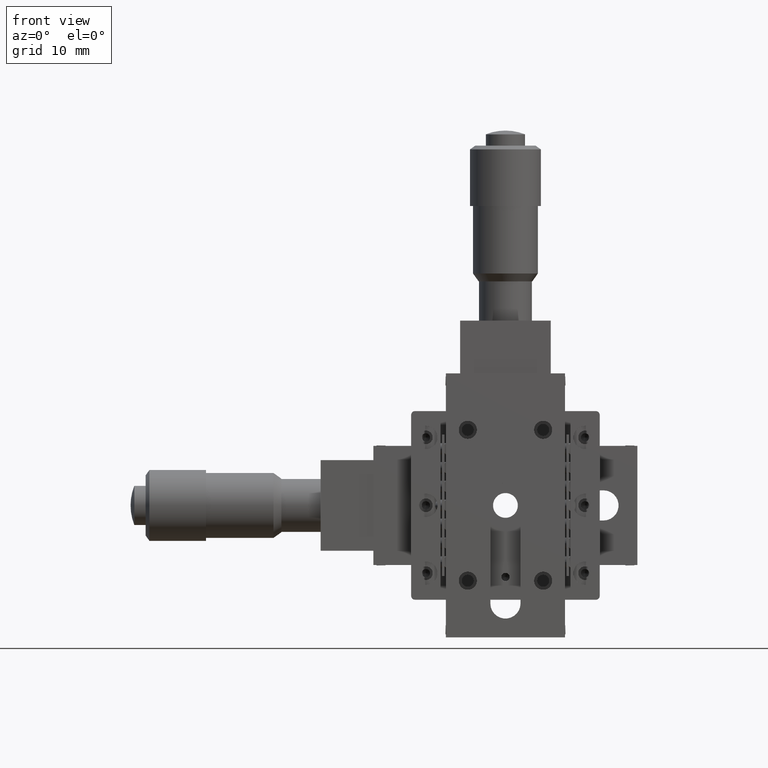
[diagram: clean part render]
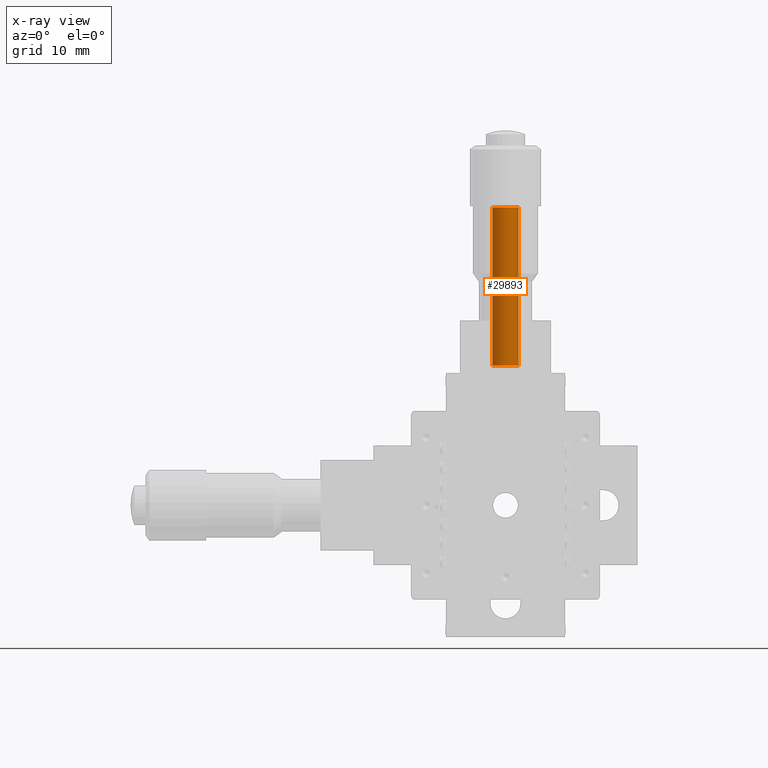
[diagram: x-ray — body ghosted, one internal face saturated and labeled with its STEP entity id]
A machine part, front view, then the same camera in x-ray: the body is ghosted and one INTERNAL B-rep face — a face not visible from any outside direction — is saturated and labeled: STEP entity #29893.
In plain terms, the highlighted cylindrical surface (edge-blend (fillet) strip) has radius 1.75 mm, axis along (-0, -0, -1).
Its self-contained STEP definition (entity closure, byte-faithful):
#2097 = CARTESIAN_POINT ( 'NONE',  ( 4.637034373615673300E-015, 6.199999999999921100, 39.50000000000000700 ) ) ;
#3196 = DIRECTION ( 'NONE',  ( -0.9995725314435850400, 0.02923618277858829100, 0.0000000000000000000 ) ) ;
#10994 = VERTEX_POINT ( 'NONE', #48759 ) ;
#12244 = VECTOR ( 'NONE', #35335, 1000.000000000000000 ) ;
#12376 = DIRECTION ( 'NONE',  ( -1.110223024626044000E-016, -1.762506864451433600E-016, -1.000000000000000000 ) ) ;
#16079 = DIRECTION ( 'NONE',  ( -1.110223024626044000E-016, -1.762506864451433600E-016, -1.000000000000000000 ) ) ;
#16398 = VERTEX_POINT ( 'NONE', #51252 ) ;
#21840 = AXIS2_PLACEMENT_3D ( 'NONE', #2097, #12376, #66994 ) ;
#22260 = AXIS2_PLACEMENT_3D ( 'NONE', #30285, #51921, #3196 ) ;
#23067 = AXIS2_PLACEMENT_3D ( 'NONE', #49136, #44119, #55257 ) ;
#24887 = FACE_OUTER_BOUND ( 'NONE', #32367, .T. ) ;
#29893 = ADVANCED_FACE ( 'NONE', ( #24887 ), #35138, .F. ) ;
#30079 = LINE ( 'NONE', #68335, #12244 ) ;
#30285 = CARTESIAN_POINT ( 'NONE',  ( 2.276824562219559300E-015, 6.199999999999905100, 18.50000000000000400 ) ) ;
#31492 = CIRCLE ( 'NONE', #23067, 1.750000000000002900 ) ;
#32367 = EDGE_LOOP ( 'NONE', ( #61842, #36831, #66581, #63854 ) ) ;
#35138 = CYLINDRICAL_SURFACE ( 'NONE', #21840, 1.750000000000002900 ) ;
#35335 = DIRECTION ( 'NONE',  ( -1.110223024626044000E-016, -1.762506864451433600E-016, -1.000000000000000000 ) ) ;
#36831 = ORIENTED_EDGE ( 'NONE', *, *, #58476, .T. ) ;
#37221 = CARTESIAN_POINT ( 'NONE',  ( -1.749251930026274500, 6.251163319862435200, 18.50000000000000400 ) ) ;
#44119 = DIRECTION ( 'NONE',  ( -1.110223024626044000E-016, -1.762506864451433100E-016, -1.000000000000000000 ) ) ;
#44369 = CIRCLE ( 'NONE', #22260, 1.750000000000002900 ) ;
#45080 = CARTESIAN_POINT ( 'NONE',  ( 1.749251930026278500, 6.148836680137389300, 39.50000000000000700 ) ) ;
#46025 = LINE ( 'NONE', #48658, #65601 ) ;
#48658 = CARTESIAN_POINT ( 'NONE',  ( 1.749251930026281400, 6.148836680137391000, 39.50000000000000700 ) ) ;
#48759 = CARTESIAN_POINT ( 'NONE',  ( -1.749251930026272300, 6.251163319862450300, 39.50000000000000700 ) ) ;
#49136 = CARTESIAN_POINT ( 'NONE',  ( 4.637034373615673300E-015, 6.199999999999921100, 39.50000000000000700 ) ) ;
#51252 = CARTESIAN_POINT ( 'NONE',  ( 1.749251930026276800, 6.148836680137389300, 18.50000000000000400 ) ) ;
#51921 = DIRECTION ( 'NONE',  ( -1.110223024626044000E-016, -1.762506864451433100E-016, -1.000000000000000000 ) ) ;
#52417 = EDGE_CURVE ( 'NONE', #16398, #53041, #44369, .T. ) ;
#53041 = VERTEX_POINT ( 'NONE', #37221 ) ;
#54599 = EDGE_CURVE ( 'NONE', #10994, #53041, #30079, .T. ) ;
#55257 = DIRECTION ( 'NONE',  ( -0.9995725314435851500, 0.02923618277858829100, 0.0000000000000000000 ) ) ;
#58476 = EDGE_CURVE ( 'NONE', #60221, #16398, #46025, .T. ) ;
#59070 = EDGE_CURVE ( 'NONE', #60221, #10994, #31492, .T. ) ;
#60221 = VERTEX_POINT ( 'NONE', #45080 ) ;
#61842 = ORIENTED_EDGE ( 'NONE', *, *, #59070, .F. ) ;
#63854 = ORIENTED_EDGE ( 'NONE', *, *, #54599, .F. ) ;
#65601 = VECTOR ( 'NONE', #16079, 1000.000000000000000 ) ;
#66581 = ORIENTED_EDGE ( 'NONE', *, *, #52417, .T. ) ;
#66994 = DIRECTION ( 'NONE',  ( -0.9995725314435851500, 0.02923618277858829100, 0.0000000000000000000 ) ) ;
#68335 = CARTESIAN_POINT ( 'NONE',  ( -1.749251930026272300, 6.251163319862450300, 39.50000000000000700 ) ) ;